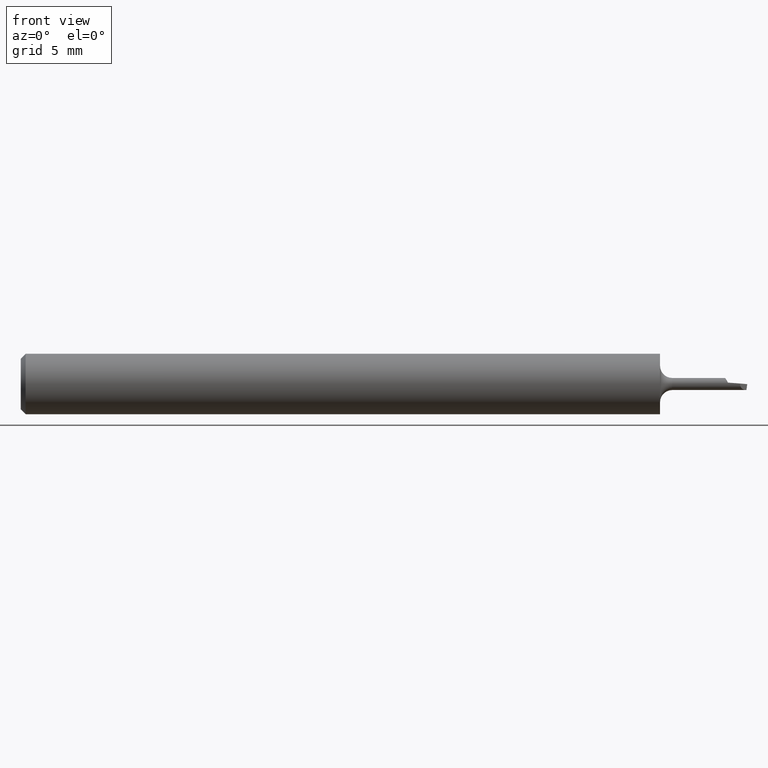
[diagram: clean part render]
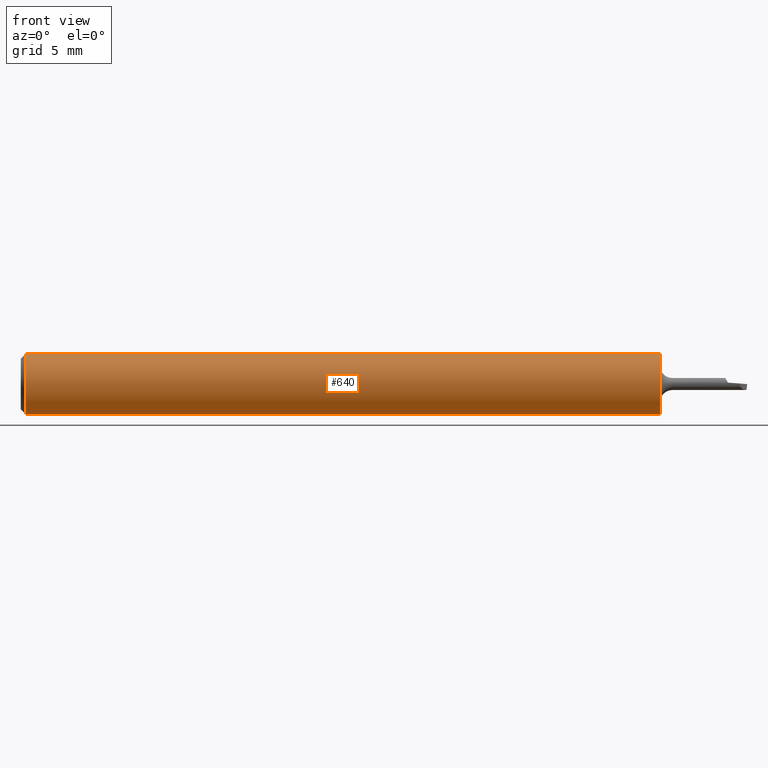
[diagram: same view with one face highlighted and labeled with its STEP entity id]
A machine part, front view. The second image highlights one B-rep face of the part: STEP entity #640.
In plain terms, the highlighted cylindrical surface (edge-blend (fillet) strip) has radius 1.5837 mm, axis along (-1, -0, -0).
Its self-contained STEP definition (entity closure, byte-faithful):
#32 = ORIENTED_EDGE ( 'NONE', *, *, #392, .F. ) ;
#78 = VERTEX_POINT ( 'NONE', #98 ) ;
#98 = CARTESIAN_POINT ( 'NONE',  ( 1.320000000000000506, 0.000000000000000000, 0.06234999999999997489 ) ) ;
#140 = VERTEX_POINT ( 'NONE', #220 ) ;
#144 = CARTESIAN_POINT ( 'NONE',  ( 0.000000000000000000, 0.000000000000000000, 0.06234999999999997489 ) ) ;
#155 = CARTESIAN_POINT ( 'NONE',  ( 0.000000000000000000, 0.000000000000000000, 0.000000000000000000 ) ) ;
#172 = VECTOR ( 'NONE', #419, 39.37007874015748143 ) ;
#175 = ORIENTED_EDGE ( 'NONE', *, *, #752, .F. ) ;
#194 = DIRECTION ( 'NONE',  ( 0.000000000000000000, 0.000000000000000000, 1.000000000000000000 ) ) ;
#220 = CARTESIAN_POINT ( 'NONE',  ( 1.320000000000000506, 7.635672792683743590E-18, -0.06234999999999997489 ) ) ;
#255 = CARTESIAN_POINT ( 'NONE',  ( 0.01000000000000000021, 0.000000000000000000, 0.000000000000000000 ) ) ;
#270 = CYLINDRICAL_SURFACE ( 'NONE', #695, 0.06234999999999997489 ) ;
#343 = ORIENTED_EDGE ( 'NONE', *, *, #472, .T. ) ;
#385 = CARTESIAN_POINT ( 'NONE',  ( 0.01000000000000000021, 0.000000000000000000, 0.06235000000000000264 ) ) ;
#388 = EDGE_LOOP ( 'NONE', ( #175, #441, #343, #32 ) ) ;
#392 = EDGE_CURVE ( 'NONE', #676, #643, #501, .T. ) ;
#393 = FACE_OUTER_BOUND ( 'NONE', #388, .T. ) ;
#419 = DIRECTION ( 'NONE',  ( -1.000000000000000000, -0.000000000000000000, -0.000000000000000000 ) ) ;
#421 = AXIS2_PLACEMENT_3D ( 'NONE', #255, #492, #194 ) ;
#433 = DIRECTION ( 'NONE',  ( 0.000000000000000000, 0.000000000000000000, -1.000000000000000000 ) ) ;
#441 = ORIENTED_EDGE ( 'NONE', *, *, #517, .F. ) ;
#456 = DIRECTION ( 'NONE',  ( -1.000000000000000000, -0.000000000000000000, -0.000000000000000000 ) ) ;
#461 = AXIS2_PLACEMENT_3D ( 'NONE', #545, #494, #433 ) ;
#472 = EDGE_CURVE ( 'NONE', #78, #643, #682, .T. ) ;
#492 = DIRECTION ( 'NONE',  ( -1.000000000000000000, -0.000000000000000000, -0.000000000000000000 ) ) ;
#494 = DIRECTION ( 'NONE',  ( 1.000000000000000000, 0.000000000000000000, 0.000000000000000000 ) ) ;
#501 = CIRCLE ( 'NONE', #421, 0.06235000000000000264 ) ;
#515 = DIRECTION ( 'NONE',  ( -1.000000000000000000, -0.000000000000000000, -0.000000000000000000 ) ) ;
#517 = EDGE_CURVE ( 'NONE', #78, #140, #528, .T. ) ;
#528 = CIRCLE ( 'NONE', #461, 0.06234999999999997489 ) ;
#545 = CARTESIAN_POINT ( 'NONE',  ( 1.320000000000000506, 0.000000000000000000, 0.000000000000000000 ) ) ;
#565 = VECTOR ( 'NONE', #456, 39.37007874015748143 ) ;
#576 = CARTESIAN_POINT ( 'NONE',  ( 0.01000000000000000021, 7.635672792683748212E-18, -0.06235000000000000264 ) ) ;
#585 = CARTESIAN_POINT ( 'NONE',  ( 0.000000000000000000, 7.635672792683743590E-18, -0.06234999999999997489 ) ) ;
#623 = DIRECTION ( 'NONE',  ( 0.000000000000000000, 0.000000000000000000, 1.000000000000000000 ) ) ;
#640 = ADVANCED_FACE ( 'NONE', ( #393 ), #270, .T. ) ;
#643 = VERTEX_POINT ( 'NONE', #385 ) ;
#654 = LINE ( 'NONE', #585, #172 ) ;
#676 = VERTEX_POINT ( 'NONE', #576 ) ;
#682 = LINE ( 'NONE', #144, #565 ) ;
#695 = AXIS2_PLACEMENT_3D ( 'NONE', #155, #515, #623 ) ;
#752 = EDGE_CURVE ( 'NONE', #140, #676, #654, .T. ) ;